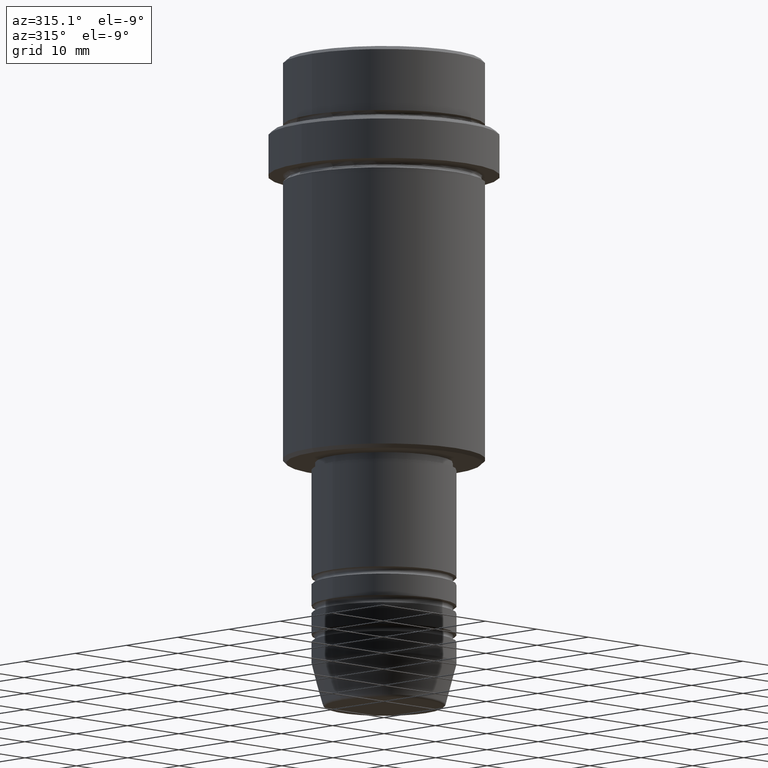
[diagram: clean part render]
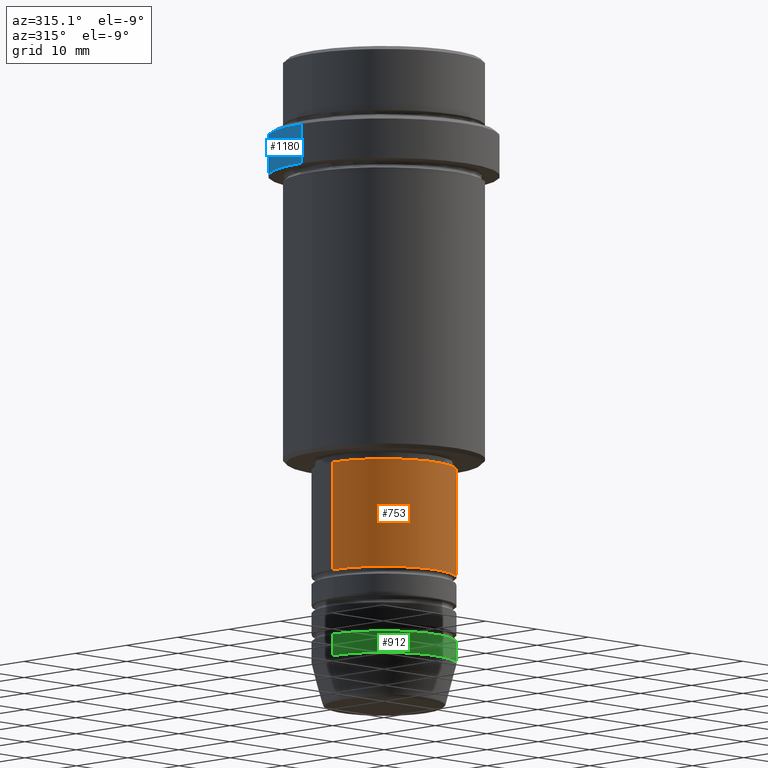
[diagram: same view with three faces highlighted in distinct colors, each labeled with its STEP entity id]
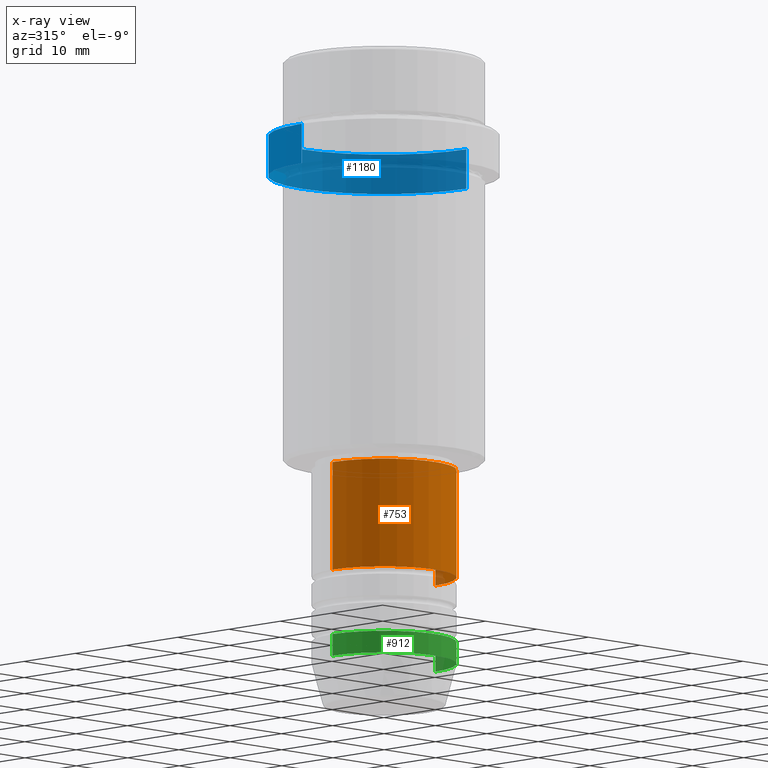
[diagram: x-ray of the same camera — body ghosted, the three highlighted faces saturated]
A machine part, auxiliary view with three faces highlighted in distinct colors.
The next image is the same camera in x-ray (body ghosted, the three faces saturated) — at least one of them is partly hidden behind the body in this view.
Their STEP definitions:

[orange] entity #753 — the highlighted cylindrical surface (partial cylindrical patch) has radius 10 mm, axis along (-0, -0, 1).
#17 = AXIS2_PLACEMENT_3D ( 'NONE', #951, #1168, #1385 ) ;
#37 = DIRECTION ( 'NONE',  ( -0.000000000000000000, -0.000000000000000000, 1.000000000000000000 ) ) ;
#60 = FACE_OUTER_BOUND ( 'NONE', #1175, .T. ) ;
#96 = LINE ( 'NONE', #564, #314 ) ;
#103 = AXIS2_PLACEMENT_3D ( 'NONE', #1358, #578, #1020 ) ;
#125 = CIRCLE ( 'NONE', #356, 10.00000000000000178 ) ;
#243 = VECTOR ( 'NONE', #37, 1000.000000000000000 ) ;
#246 = CARTESIAN_POINT ( 'NONE',  ( 10.00000000000000178, 0.000000000000000000, -57.00000000000000000 ) ) ;
#250 = ORIENTED_EDGE ( 'NONE', *, *, #1324, .T. ) ;
#255 = DIRECTION ( 'NONE',  ( -0.000000000000000000, -0.000000000000000000, 1.000000000000000000 ) ) ;
#271 = CARTESIAN_POINT ( 'NONE',  ( 10.00000000000000178, 0.000000000000000000, 0.000000000000000000 ) ) ;
#314 = VECTOR ( 'NONE', #906, 1000.000000000000000 ) ;
#315 = VERTEX_POINT ( 'NONE', #604 ) ;
#356 = AXIS2_PLACEMENT_3D ( 'NONE', #814, #255, #704 ) ;
#499 = CYLINDRICAL_SURFACE ( 'NONE', #17, 10.00000000000000178 ) ;
#564 = CARTESIAN_POINT ( 'NONE',  ( -10.00000000000000178, 1.224646799147353454E-15, 0.000000000000000000 ) ) ;
#578 = DIRECTION ( 'NONE',  ( -0.000000000000000000, -0.000000000000000000, 1.000000000000000000 ) ) ;
#604 = CARTESIAN_POINT ( 'NONE',  ( -10.00000000000000000, 1.224646799147353256E-15, -71.99999999999990052 ) ) ;
#704 = DIRECTION ( 'NONE',  ( 1.000000000000000000, 0.000000000000000000, 0.000000000000000000 ) ) ;
#720 = ORIENTED_EDGE ( 'NONE', *, *, #1092, .F. ) ;
#753 = ADVANCED_FACE ( 'NONE', ( #60 ), #499, .T. ) ;
#814 = CARTESIAN_POINT ( 'NONE',  ( 0.000000000000000000, 0.000000000000000000, -57.00000000000000000 ) ) ;
#876 = VERTEX_POINT ( 'NONE', #1164 ) ;
#906 = DIRECTION ( 'NONE',  ( -0.000000000000000000, -0.000000000000000000, 1.000000000000000000 ) ) ;
#925 = CIRCLE ( 'NONE', #103, 10.00000000000000000 ) ;
#939 = VERTEX_POINT ( 'NONE', #246 ) ;
#951 = CARTESIAN_POINT ( 'NONE',  ( 0.000000000000000000, 0.000000000000000000, 0.000000000000000000 ) ) ;
#1009 = VERTEX_POINT ( 'NONE', #1231 ) ;
#1020 = DIRECTION ( 'NONE',  ( 1.000000000000000000, 0.000000000000000000, 0.000000000000000000 ) ) ;
#1028 = ORIENTED_EDGE ( 'NONE', *, *, #1289, .T. ) ;
#1031 = LINE ( 'NONE', #271, #243 ) ;
#1092 = EDGE_CURVE ( 'NONE', #315, #876, #96, .T. ) ;
#1164 = CARTESIAN_POINT ( 'NONE',  ( -10.00000000000000178, 1.224646799147353454E-15, -57.00000000000000000 ) ) ;
#1168 = DIRECTION ( 'NONE',  ( -0.000000000000000000, -0.000000000000000000, 1.000000000000000000 ) ) ;
#1175 = EDGE_LOOP ( 'NONE', ( #720, #1028, #250, #1309 ) ) ;
#1231 = CARTESIAN_POINT ( 'NONE',  ( 10.00000000000000000, 0.000000000000000000, -71.99999999999990052 ) ) ;
#1289 = EDGE_CURVE ( 'NONE', #315, #1009, #925, .T. ) ;
#1309 = ORIENTED_EDGE ( 'NONE', *, *, #1343, .F. ) ;
#1324 = EDGE_CURVE ( 'NONE', #1009, #939, #1031, .T. ) ;
#1343 = EDGE_CURVE ( 'NONE', #876, #939, #125, .T. ) ;
#1358 = CARTESIAN_POINT ( 'NONE',  ( 0.000000000000000000, 0.000000000000000000, -71.99999999999990052 ) ) ;
#1385 = DIRECTION ( 'NONE',  ( 1.000000000000000000, 0.000000000000000000, 0.000000000000000000 ) ) ;

[blue] entity #1180 — the highlighted cylindrical surface (partial cylindrical patch) has radius 16 mm, axis along (-0, -0, 1).
#70 = VERTEX_POINT ( 'NONE', #1041 ) ;
#80 = VECTOR ( 'NONE', #947, 1000.000000000000000 ) ;
#105 = ORIENTED_EDGE ( 'NONE', *, *, #901, .T. ) ;
#132 = EDGE_CURVE ( 'NONE', #1240, #70, #489, .T. ) ;
#161 = LINE ( 'NONE', #388, #1306 ) ;
#205 = ORIENTED_EDGE ( 'NONE', *, *, #889, .F. ) ;
#249 = CARTESIAN_POINT ( 'NONE',  ( -15.99999999999999289, 1.959434878635764343E-15, -16.00000000000000000 ) ) ;
#295 = CARTESIAN_POINT ( 'NONE',  ( 15.99999999999999289, 0.000000000000000000, -16.00000000000000000 ) ) ;
#328 = EDGE_CURVE ( 'NONE', #902, #1321, #519, .T. ) ;
#388 = CARTESIAN_POINT ( 'NONE',  ( -15.99999999999999289, 1.959434878635764343E-15, 0.000000000000000000 ) ) ;
#425 = DIRECTION ( 'NONE',  ( 1.000000000000000000, 0.000000000000000000, 0.000000000000000000 ) ) ;
#478 = ORIENTED_EDGE ( 'NONE', *, *, #328, .T. ) ;
#489 = CIRCLE ( 'NONE', #1167, 15.99999999999999289 ) ;
#519 = CIRCLE ( 'NONE', #1326, 15.99999999999999289 ) ;
#533 = FACE_OUTER_BOUND ( 'NONE', #1364, .T. ) ;
#605 = CARTESIAN_POINT ( 'NONE',  ( 15.99999999999999289, 0.000000000000000000, 0.000000000000000000 ) ) ;
#643 = DIRECTION ( 'NONE',  ( 1.000000000000000000, 0.000000000000000000, 0.000000000000000000 ) ) ;
#680 = CARTESIAN_POINT ( 'NONE',  ( 0.000000000000000000, 0.000000000000000000, -10.49999999999998224 ) ) ;
#700 = CARTESIAN_POINT ( 'NONE',  ( -15.99999999999999289, 1.959434878635764343E-15, -10.49999999999998224 ) ) ;
#744 = DIRECTION ( 'NONE',  ( -0.000000000000000000, -0.000000000000000000, 1.000000000000000000 ) ) ;
#757 = ORIENTED_EDGE ( 'NONE', *, *, #132, .T. ) ;
#889 = EDGE_CURVE ( 'NONE', #902, #70, #1076, .T. ) ;
#892 = CYLINDRICAL_SURFACE ( 'NONE', #1216, 15.99999999999999289 ) ;
#901 = EDGE_CURVE ( 'NONE', #1321, #1240, #161, .T. ) ;
#902 = VERTEX_POINT ( 'NONE', #295 ) ;
#947 = DIRECTION ( 'NONE',  ( -0.000000000000000000, -0.000000000000000000, 1.000000000000000000 ) ) ;
#981 = CARTESIAN_POINT ( 'NONE',  ( 0.000000000000000000, 0.000000000000000000, 0.000000000000000000 ) ) ;
#1002 = CARTESIAN_POINT ( 'NONE',  ( 0.000000000000000000, 0.000000000000000000, -16.00000000000000000 ) ) ;
#1041 = CARTESIAN_POINT ( 'NONE',  ( 15.99999999999999289, 0.000000000000000000, -10.49999999999998224 ) ) ;
#1063 = DIRECTION ( 'NONE',  ( -0.000000000000000000, -0.000000000000000000, 1.000000000000000000 ) ) ;
#1076 = LINE ( 'NONE', #605, #80 ) ;
#1111 = DIRECTION ( 'NONE',  ( -0.000000000000000000, -0.000000000000000000, 1.000000000000000000 ) ) ;
#1167 = AXIS2_PLACEMENT_3D ( 'NONE', #680, #1249, #1237 ) ;
#1180 = ADVANCED_FACE ( 'NONE', ( #533 ), #892, .T. ) ;
#1216 = AXIS2_PLACEMENT_3D ( 'NONE', #981, #1111, #425 ) ;
#1237 = DIRECTION ( 'NONE',  ( 1.000000000000000000, 0.000000000000000000, 0.000000000000000000 ) ) ;
#1240 = VERTEX_POINT ( 'NONE', #700 ) ;
#1249 = DIRECTION ( 'NONE',  ( 0.000000000000000000, 0.000000000000000000, -1.000000000000000000 ) ) ;
#1306 = VECTOR ( 'NONE', #1063, 1000.000000000000000 ) ;
#1321 = VERTEX_POINT ( 'NONE', #249 ) ;
#1326 = AXIS2_PLACEMENT_3D ( 'NONE', #1002, #744, #643 ) ;
#1364 = EDGE_LOOP ( 'NONE', ( #478, #105, #757, #205 ) ) ;

[green] entity #912 — the highlighted cylindrical surface (partial cylindrical patch) has radius 10 mm, axis along (-0, -0, 1).
#43 = DIRECTION ( 'NONE',  ( -0.000000000000000000, -0.000000000000000000, 1.000000000000000000 ) ) ;
#110 = EDGE_LOOP ( 'NONE', ( #1196, #1380, #1388, #927 ) ) ;
#136 = DIRECTION ( 'NONE',  ( 1.000000000000000000, 0.000000000000000000, 0.000000000000000000 ) ) ;
#212 = VECTOR ( 'NONE', #628, 1000.000000000000000 ) ;
#300 = VERTEX_POINT ( 'NONE', #625 ) ;
#306 = FACE_OUTER_BOUND ( 'NONE', #110, .T. ) ;
#337 = VERTEX_POINT ( 'NONE', #979 ) ;
#384 = LINE ( 'NONE', #1072, #1410 ) ;
#408 = EDGE_CURVE ( 'NONE', #337, #624, #384, .T. ) ;
#432 = CYLINDRICAL_SURFACE ( 'NONE', #1265, 10.00000000000000000 ) ;
#440 = DIRECTION ( 'NONE',  ( -0.000000000000000000, -0.000000000000000000, 1.000000000000000000 ) ) ;
#535 = DIRECTION ( 'NONE',  ( 1.000000000000000000, 0.000000000000000000, 0.000000000000000000 ) ) ;
#616 = CARTESIAN_POINT ( 'NONE',  ( 10.00000000000000000, 0.000000000000000000, 0.000000000000000000 ) ) ;
#624 = VERTEX_POINT ( 'NONE', #974 ) ;
#625 = CARTESIAN_POINT ( 'NONE',  ( 10.00000000000000000, 0.000000000000000000, -84.00000000000000000 ) ) ;
#628 = DIRECTION ( 'NONE',  ( -0.000000000000000000, -0.000000000000000000, 1.000000000000000000 ) ) ;
#642 = DIRECTION ( 'NONE',  ( -0.000000000000000000, -0.000000000000000000, 1.000000000000000000 ) ) ;
#650 = DIRECTION ( 'NONE',  ( 1.000000000000000000, 0.000000000000000000, 0.000000000000000000 ) ) ;
#667 = EDGE_CURVE ( 'NONE', #624, #808, #1328, .T. ) ;
#707 = AXIS2_PLACEMENT_3D ( 'NONE', #1000, #642, #535 ) ;
#808 = VERTEX_POINT ( 'NONE', #915 ) ;
#827 = DIRECTION ( 'NONE',  ( -0.000000000000000000, -0.000000000000000000, 1.000000000000000000 ) ) ;
#858 = LINE ( 'NONE', #616, #212 ) ;
#912 = ADVANCED_FACE ( 'NONE', ( #306 ), #432, .T. ) ;
#915 = CARTESIAN_POINT ( 'NONE',  ( 10.00000000000000000, 0.000000000000000000, -81.00000000000000000 ) ) ;
#927 = ORIENTED_EDGE ( 'NONE', *, *, #667, .F. ) ;
#974 = CARTESIAN_POINT ( 'NONE',  ( -10.00000000000000000, 1.224646799147353256E-15, -81.00000000000000000 ) ) ;
#979 = CARTESIAN_POINT ( 'NONE',  ( -10.00000000000000000, 1.224646799147353256E-15, -84.00000000000000000 ) ) ;
#1000 = CARTESIAN_POINT ( 'NONE',  ( 0.000000000000000000, 0.000000000000000000, -81.00000000000000000 ) ) ;
#1072 = CARTESIAN_POINT ( 'NONE',  ( -10.00000000000000000, 1.224646799147353256E-15, 0.000000000000000000 ) ) ;
#1196 = ORIENTED_EDGE ( 'NONE', *, *, #408, .F. ) ;
#1201 = CARTESIAN_POINT ( 'NONE',  ( 0.000000000000000000, 0.000000000000000000, 0.000000000000000000 ) ) ;
#1227 = EDGE_CURVE ( 'NONE', #337, #300, #1352, .T. ) ;
#1246 = AXIS2_PLACEMENT_3D ( 'NONE', #1268, #43, #136 ) ;
#1265 = AXIS2_PLACEMENT_3D ( 'NONE', #1201, #440, #650 ) ;
#1268 = CARTESIAN_POINT ( 'NONE',  ( 0.000000000000000000, 0.000000000000000000, -84.00000000000000000 ) ) ;
#1328 = CIRCLE ( 'NONE', #707, 10.00000000000000000 ) ;
#1352 = CIRCLE ( 'NONE', #1246, 10.00000000000000000 ) ;
#1365 = EDGE_CURVE ( 'NONE', #300, #808, #858, .T. ) ;
#1380 = ORIENTED_EDGE ( 'NONE', *, *, #1227, .T. ) ;
#1388 = ORIENTED_EDGE ( 'NONE', *, *, #1365, .T. ) ;
#1410 = VECTOR ( 'NONE', #827, 1000.000000000000000 ) ;